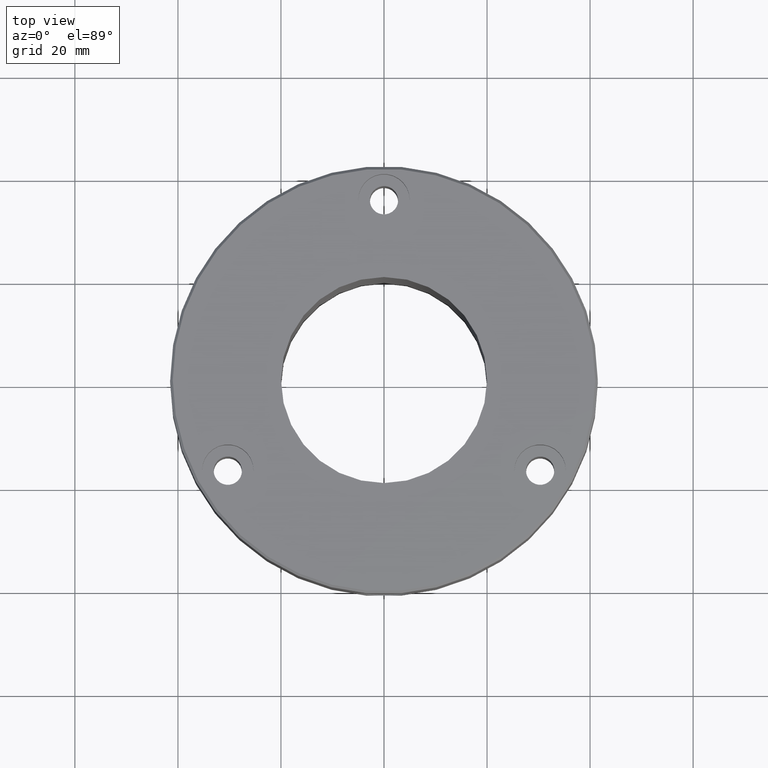
[diagram: clean part render]
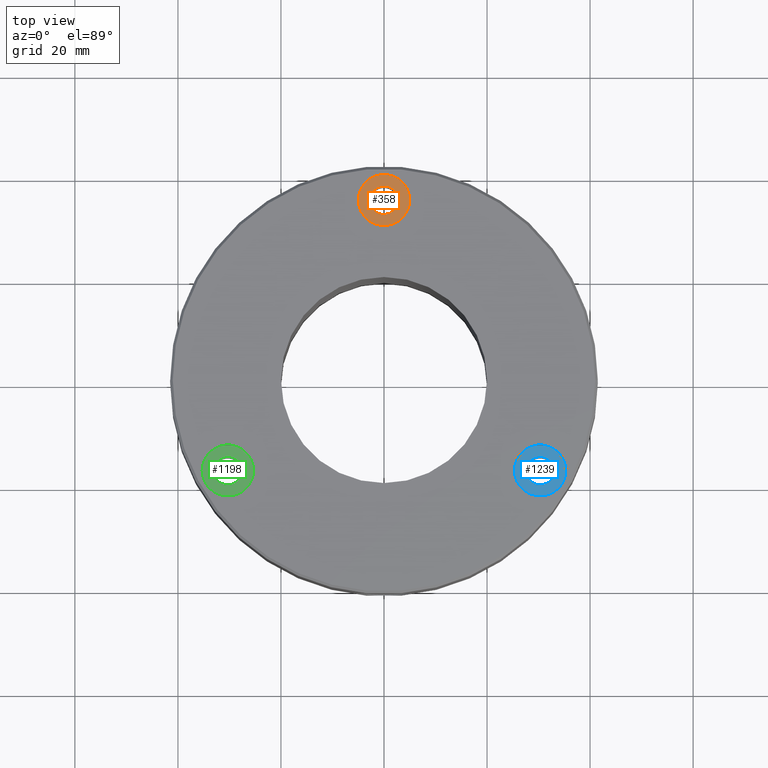
[diagram: same view with three faces highlighted in distinct colors, each labeled with its STEP entity id]
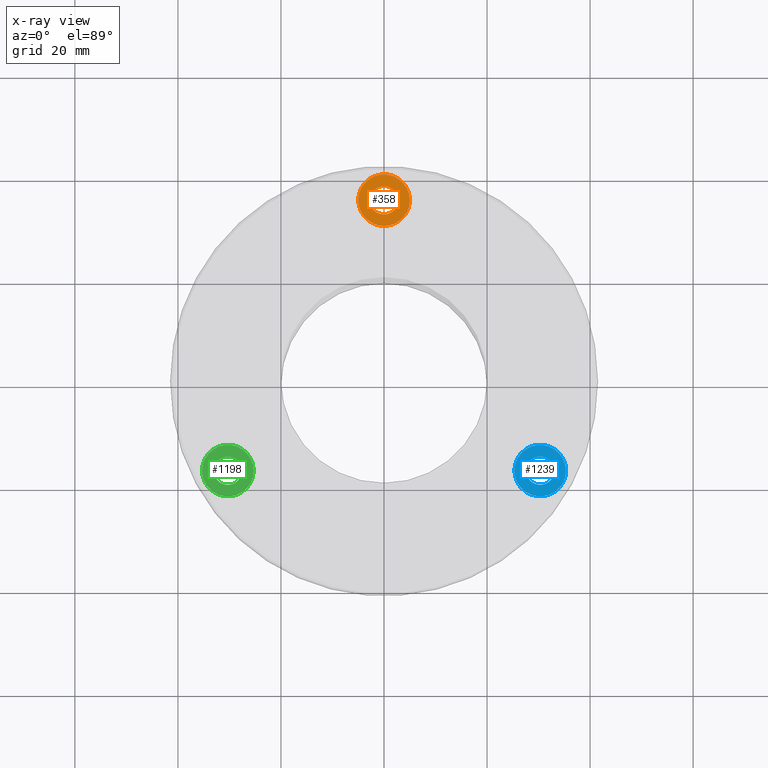
[diagram: x-ray of the same camera — body ghosted, the three highlighted faces saturated]
A machine part, top view with three faces highlighted in distinct colors.
The next image is the same camera in x-ray (body ghosted, the three faces saturated) — at least one of them is partly hidden behind the body in this view.
Their STEP definitions:

[orange] entity #358 — the highlighted planar face has unit normal (0, 0, -1).
#7 = DIRECTION ( 'NONE',  ( 1.000000000000000000, 0.000000000000000000, 0.000000000000000000 ) ) ;
#18 = CARTESIAN_POINT ( 'NONE',  ( -4.999999999999999112, 35.00000000000000711, -5.400000000000000355 ) ) ;
#33 = CARTESIAN_POINT ( 'NONE',  ( 0.000000000000000000, 35.00000000000000711, -5.400000000000000355 ) ) ;
#89 = AXIS2_PLACEMENT_3D ( 'NONE', #427, #526, #1176 ) ;
#93 = AXIS2_PLACEMENT_3D ( 'NONE', #1188, #874, #797 ) ;
#95 = PLANE ( 'NONE',  #89 ) ;
#217 = ORIENTED_EDGE ( 'NONE', *, *, #876, .T. ) ;
#277 = ORIENTED_EDGE ( 'NONE', *, *, #973, .F. ) ;
#297 = CIRCLE ( 'NONE', #987, 2.750000000000005773 ) ;
#313 = FACE_OUTER_BOUND ( 'NONE', #549, .T. ) ;
#349 = AXIS2_PLACEMENT_3D ( 'NONE', #1052, #855, #767 ) ;
#358 = ADVANCED_FACE ( 'NONE', ( #1159, #313 ), #95, .F. ) ;
#382 = VERTEX_POINT ( 'NONE', #820 ) ;
#408 = DIRECTION ( 'NONE',  ( -0.000000000000000000, -0.000000000000000000, 1.000000000000000000 ) ) ;
#427 = CARTESIAN_POINT ( 'NONE',  ( 2.750000000000005773, 35.00000000000000711, -5.400000000000000355 ) ) ;
#452 = CARTESIAN_POINT ( 'NONE',  ( 0.000000000000000000, 35.00000000000000711, -5.400000000000000355 ) ) ;
#515 = CARTESIAN_POINT ( 'NONE',  ( -2.750000000000005773, 35.00000000000000711, -5.400000000000000355 ) ) ;
#526 = DIRECTION ( 'NONE',  ( 0.000000000000000000, 0.000000000000000000, -1.000000000000000000 ) ) ;
#549 = EDGE_LOOP ( 'NONE', ( #591, #217 ) ) ;
#553 = AXIS2_PLACEMENT_3D ( 'NONE', #452, #939, #7 ) ;
#591 = ORIENTED_EDGE ( 'NONE', *, *, #1099, .T. ) ;
#672 = ORIENTED_EDGE ( 'NONE', *, *, #766, .F. ) ;
#686 = CIRCLE ( 'NONE', #349, 2.750000000000005773 ) ;
#730 = VERTEX_POINT ( 'NONE', #18 ) ;
#745 = CIRCLE ( 'NONE', #553, 4.999999999999999112 ) ;
#766 = EDGE_CURVE ( 'NONE', #1038, #382, #297, .T. ) ;
#767 = DIRECTION ( 'NONE',  ( 1.000000000000000000, 0.000000000000000000, 0.000000000000000000 ) ) ;
#797 = DIRECTION ( 'NONE',  ( 1.000000000000000000, 0.000000000000000000, 0.000000000000000000 ) ) ;
#820 = CARTESIAN_POINT ( 'NONE',  ( 2.750000000000005773, 35.00000000000000711, -5.400000000000000355 ) ) ;
#855 = DIRECTION ( 'NONE',  ( -0.000000000000000000, -0.000000000000000000, 1.000000000000000000 ) ) ;
#861 = EDGE_LOOP ( 'NONE', ( #277, #672 ) ) ;
#874 = DIRECTION ( 'NONE',  ( -0.000000000000000000, -0.000000000000000000, 1.000000000000000000 ) ) ;
#876 = EDGE_CURVE ( 'NONE', #730, #1127, #745, .T. ) ;
#897 = DIRECTION ( 'NONE',  ( 1.000000000000000000, 0.000000000000000000, 0.000000000000000000 ) ) ;
#939 = DIRECTION ( 'NONE',  ( -0.000000000000000000, -0.000000000000000000, 1.000000000000000000 ) ) ;
#973 = EDGE_CURVE ( 'NONE', #382, #1038, #686, .T. ) ;
#987 = AXIS2_PLACEMENT_3D ( 'NONE', #33, #408, #897 ) ;
#1038 = VERTEX_POINT ( 'NONE', #515 ) ;
#1052 = CARTESIAN_POINT ( 'NONE',  ( 0.000000000000000000, 35.00000000000000711, -5.400000000000000355 ) ) ;
#1062 = CARTESIAN_POINT ( 'NONE',  ( 4.999999999999999112, 35.00000000000000711, -5.400000000000000355 ) ) ;
#1099 = EDGE_CURVE ( 'NONE', #1127, #730, #1163, .T. ) ;
#1127 = VERTEX_POINT ( 'NONE', #1062 ) ;
#1159 = FACE_BOUND ( 'NONE', #861, .T. ) ;
#1163 = CIRCLE ( 'NONE', #93, 4.999999999999999112 ) ;
#1176 = DIRECTION ( 'NONE',  ( -1.000000000000000000, 0.000000000000000000, -0.000000000000000000 ) ) ;
#1188 = CARTESIAN_POINT ( 'NONE',  ( 0.000000000000000000, 35.00000000000000711, -5.400000000000000355 ) ) ;

[blue] entity #1239 — the highlighted planar face has unit normal (0, 0, -1).
#3 = CIRCLE ( 'NONE', #966, 2.750000000000009326 ) ;
#24 = DIRECTION ( 'NONE',  ( -1.000000000000000000, 0.000000000000000000, -0.000000000000000000 ) ) ;
#66 = CIRCLE ( 'NONE', #502, 2.750000000000009326 ) ;
#71 = EDGE_LOOP ( 'NONE', ( #1223, #659 ) ) ;
#102 = CARTESIAN_POINT ( 'NONE',  ( 33.06088913245529426, -17.50000000000013856, -5.400000000000000355 ) ) ;
#128 = AXIS2_PLACEMENT_3D ( 'NONE', #629, #1022, #1197 ) ;
#133 = VERTEX_POINT ( 'NONE', #601 ) ;
#138 = FACE_BOUND ( 'NONE', #71, .T. ) ;
#153 = CIRCLE ( 'NONE', #1105, 4.999999999999997335 ) ;
#230 = DIRECTION ( 'NONE',  ( 1.000000000000000000, 0.000000000000000000, 0.000000000000000000 ) ) ;
#320 = DIRECTION ( 'NONE',  ( -0.000000000000000000, -0.000000000000000000, 1.000000000000000000 ) ) ;
#424 = DIRECTION ( 'NONE',  ( 1.000000000000000000, 0.000000000000000000, 0.000000000000000000 ) ) ;
#439 = CARTESIAN_POINT ( 'NONE',  ( 27.56088913245527294, -17.50000000000013856, -5.400000000000000355 ) ) ;
#469 = EDGE_LOOP ( 'NONE', ( #512, #1016 ) ) ;
#502 = AXIS2_PLACEMENT_3D ( 'NONE', #975, #1075, #424 ) ;
#506 = VERTEX_POINT ( 'NONE', #439 ) ;
#512 = ORIENTED_EDGE ( 'NONE', *, *, #1009, .T. ) ;
#519 = CARTESIAN_POINT ( 'NONE',  ( 35.31088913245528005, -17.50000000000013856, -5.400000000000000355 ) ) ;
#538 = CARTESIAN_POINT ( 'NONE',  ( 33.06088913245529426, -17.50000000000013856, -5.400000000000000355 ) ) ;
#570 = VERTEX_POINT ( 'NONE', #519 ) ;
#601 = CARTESIAN_POINT ( 'NONE',  ( 25.31088913245528715, -17.50000000000013856, -5.400000000000000355 ) ) ;
#619 = PLANE ( 'NONE',  #1069 ) ;
#621 = DIRECTION ( 'NONE',  ( 1.000000000000000000, 0.000000000000000000, 0.000000000000000000 ) ) ;
#629 = CARTESIAN_POINT ( 'NONE',  ( 30.31088913245528360, -17.50000000000013856, -5.400000000000000355 ) ) ;
#659 = ORIENTED_EDGE ( 'NONE', *, *, #689, .F. ) ;
#689 = EDGE_CURVE ( 'NONE', #506, #921, #66, .T. ) ;
#707 = EDGE_CURVE ( 'NONE', #921, #506, #3, .T. ) ;
#718 = DIRECTION ( 'NONE',  ( 0.000000000000000000, 0.000000000000000000, -1.000000000000000000 ) ) ;
#842 = EDGE_CURVE ( 'NONE', #133, #570, #925, .T. ) ;
#868 = DIRECTION ( 'NONE',  ( -0.000000000000000000, -0.000000000000000000, 1.000000000000000000 ) ) ;
#884 = CARTESIAN_POINT ( 'NONE',  ( 30.31088913245528360, -17.50000000000013856, -5.400000000000000355 ) ) ;
#890 = CARTESIAN_POINT ( 'NONE',  ( 30.31088913245528360, -17.50000000000013856, -5.400000000000000355 ) ) ;
#907 = FACE_OUTER_BOUND ( 'NONE', #469, .T. ) ;
#921 = VERTEX_POINT ( 'NONE', #102 ) ;
#925 = CIRCLE ( 'NONE', #128, 4.999999999999997335 ) ;
#966 = AXIS2_PLACEMENT_3D ( 'NONE', #884, #320, #621 ) ;
#975 = CARTESIAN_POINT ( 'NONE',  ( 30.31088913245528360, -17.50000000000013856, -5.400000000000000355 ) ) ;
#1009 = EDGE_CURVE ( 'NONE', #570, #133, #153, .T. ) ;
#1016 = ORIENTED_EDGE ( 'NONE', *, *, #842, .T. ) ;
#1022 = DIRECTION ( 'NONE',  ( -0.000000000000000000, -0.000000000000000000, 1.000000000000000000 ) ) ;
#1069 = AXIS2_PLACEMENT_3D ( 'NONE', #538, #718, #24 ) ;
#1075 = DIRECTION ( 'NONE',  ( -0.000000000000000000, -0.000000000000000000, 1.000000000000000000 ) ) ;
#1105 = AXIS2_PLACEMENT_3D ( 'NONE', #890, #868, #230 ) ;
#1197 = DIRECTION ( 'NONE',  ( 1.000000000000000000, 0.000000000000000000, 0.000000000000000000 ) ) ;
#1223 = ORIENTED_EDGE ( 'NONE', *, *, #707, .F. ) ;
#1239 = ADVANCED_FACE ( 'NONE', ( #138, #907 ), #619, .F. ) ;

[green] entity #1198 — the highlighted planar face has unit normal (0, 0, -1).
#2 = CIRCLE ( 'NONE', #110, 5.000000000000000888 ) ;
#9 = CIRCLE ( 'NONE', #302, 2.750000000000005773 ) ;
#13 = DIRECTION ( 'NONE',  ( -0.000000000000000000, -0.000000000000000000, 1.000000000000000000 ) ) ;
#14 = EDGE_CURVE ( 'NONE', #762, #354, #9, .T. ) ;
#110 = AXIS2_PLACEMENT_3D ( 'NONE', #1131, #281, #661 ) ;
#118 = ORIENTED_EDGE ( 'NONE', *, *, #14, .F. ) ;
#168 = ORIENTED_EDGE ( 'NONE', *, *, #447, .T. ) ;
#173 = CIRCLE ( 'NONE', #880, 2.750000000000005773 ) ;
#184 = EDGE_LOOP ( 'NONE', ( #168, #387 ) ) ;
#213 = CARTESIAN_POINT ( 'NONE',  ( -27.56088913245539374, -17.49999999999993605, -5.400000000000000355 ) ) ;
#215 = DIRECTION ( 'NONE',  ( 1.000000000000000000, 0.000000000000000000, 0.000000000000000000 ) ) ;
#225 = AXIS2_PLACEMENT_3D ( 'NONE', #1034, #276, #844 ) ;
#235 = VERTEX_POINT ( 'NONE', #746 ) ;
#241 = EDGE_CURVE ( 'NONE', #1114, #235, #2, .T. ) ;
#276 = DIRECTION ( 'NONE',  ( -0.000000000000000000, -0.000000000000000000, 1.000000000000000000 ) ) ;
#281 = DIRECTION ( 'NONE',  ( -0.000000000000000000, -0.000000000000000000, 1.000000000000000000 ) ) ;
#302 = AXIS2_PLACEMENT_3D ( 'NONE', #1093, #606, #688 ) ;
#354 = VERTEX_POINT ( 'NONE', #1149 ) ;
#387 = ORIENTED_EDGE ( 'NONE', *, *, #241, .T. ) ;
#447 = EDGE_CURVE ( 'NONE', #235, #1114, #572, .T. ) ;
#508 = DIRECTION ( 'NONE',  ( 0.000000000000000000, 0.000000000000000000, -1.000000000000000000 ) ) ;
#514 = CARTESIAN_POINT ( 'NONE',  ( -27.56088913245539374, -17.49999999999993605, -5.400000000000000355 ) ) ;
#572 = CIRCLE ( 'NONE', #225, 5.000000000000000888 ) ;
#606 = DIRECTION ( 'NONE',  ( -0.000000000000000000, -0.000000000000000000, 1.000000000000000000 ) ) ;
#661 = DIRECTION ( 'NONE',  ( 1.000000000000000000, 0.000000000000000000, 0.000000000000000000 ) ) ;
#688 = DIRECTION ( 'NONE',  ( 1.000000000000000000, 0.000000000000000000, 0.000000000000000000 ) ) ;
#702 = FACE_OUTER_BOUND ( 'NONE', #184, .T. ) ;
#725 = PLANE ( 'NONE',  #931 ) ;
#734 = EDGE_CURVE ( 'NONE', #354, #762, #173, .T. ) ;
#746 = CARTESIAN_POINT ( 'NONE',  ( -25.31088913245539729, -17.49999999999993605, -5.400000000000000355 ) ) ;
#762 = VERTEX_POINT ( 'NONE', #213 ) ;
#795 = EDGE_LOOP ( 'NONE', ( #118, #1184 ) ) ;
#844 = DIRECTION ( 'NONE',  ( 1.000000000000000000, 0.000000000000000000, 0.000000000000000000 ) ) ;
#880 = AXIS2_PLACEMENT_3D ( 'NONE', #982, #13, #215 ) ;
#931 = AXIS2_PLACEMENT_3D ( 'NONE', #514, #508, #997 ) ;
#982 = CARTESIAN_POINT ( 'NONE',  ( -30.31088913245539729, -17.49999999999993605, -5.400000000000000355 ) ) ;
#997 = DIRECTION ( 'NONE',  ( -1.000000000000000000, 0.000000000000000000, -0.000000000000000000 ) ) ;
#1008 = FACE_BOUND ( 'NONE', #795, .T. ) ;
#1034 = CARTESIAN_POINT ( 'NONE',  ( -30.31088913245539729, -17.49999999999993605, -5.400000000000000355 ) ) ;
#1067 = CARTESIAN_POINT ( 'NONE',  ( -35.31088913245540084, -17.49999999999993605, -5.400000000000000355 ) ) ;
#1093 = CARTESIAN_POINT ( 'NONE',  ( -30.31088913245539729, -17.49999999999993605, -5.400000000000000355 ) ) ;
#1114 = VERTEX_POINT ( 'NONE', #1067 ) ;
#1131 = CARTESIAN_POINT ( 'NONE',  ( -30.31088913245539729, -17.49999999999993605, -5.400000000000000355 ) ) ;
#1149 = CARTESIAN_POINT ( 'NONE',  ( -33.06088913245540084, -17.49999999999993605, -5.400000000000000355 ) ) ;
#1184 = ORIENTED_EDGE ( 'NONE', *, *, #734, .F. ) ;
#1198 = ADVANCED_FACE ( 'NONE', ( #1008, #702 ), #725, .F. ) ;